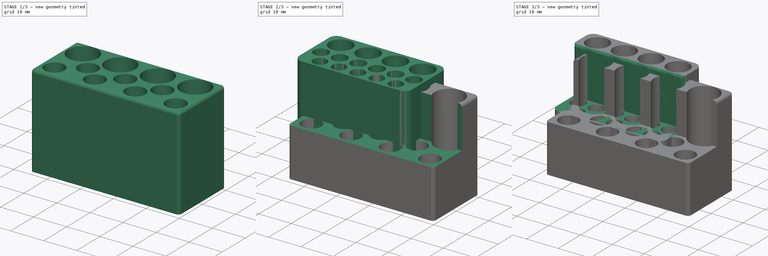
[diagram: build sequence overview — one tinted view per stage of 3, left to right]
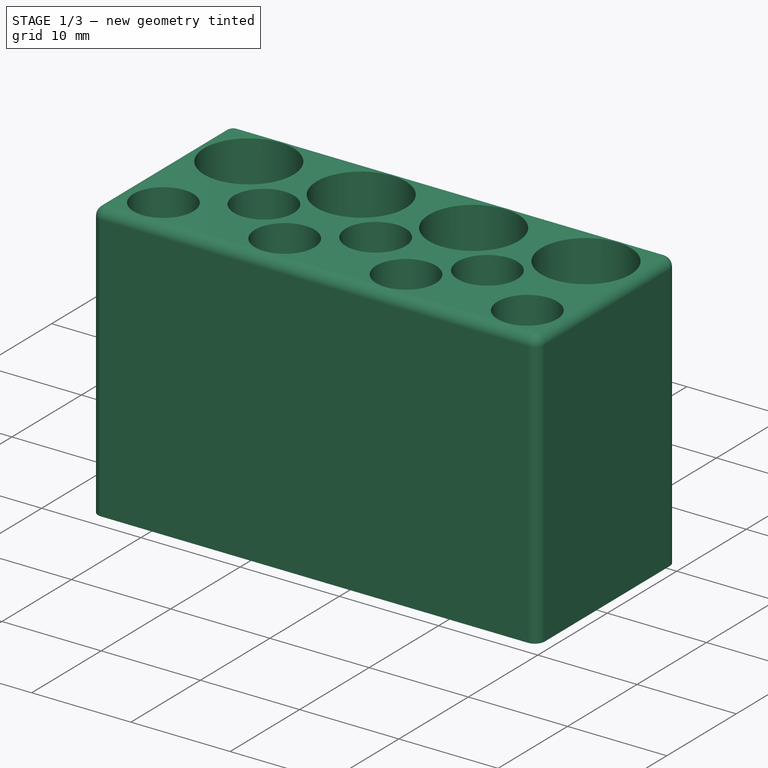
[diagram: stage 1 of 3 — iso view after this stage's code; geometry added in this stage tinted green]
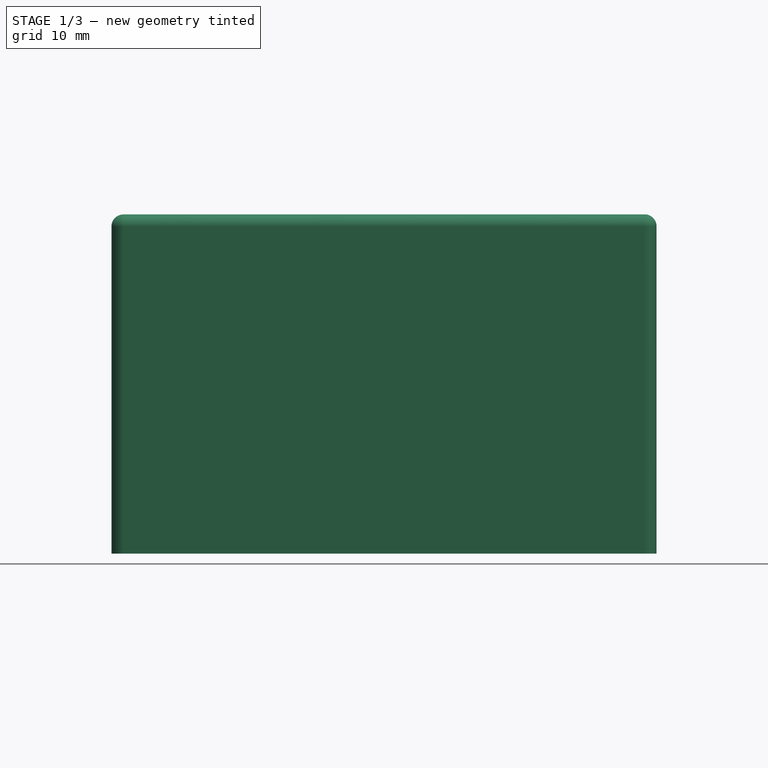
[diagram: stage 1 of 3 — front view after this stage's code; geometry added in this stage tinted green]
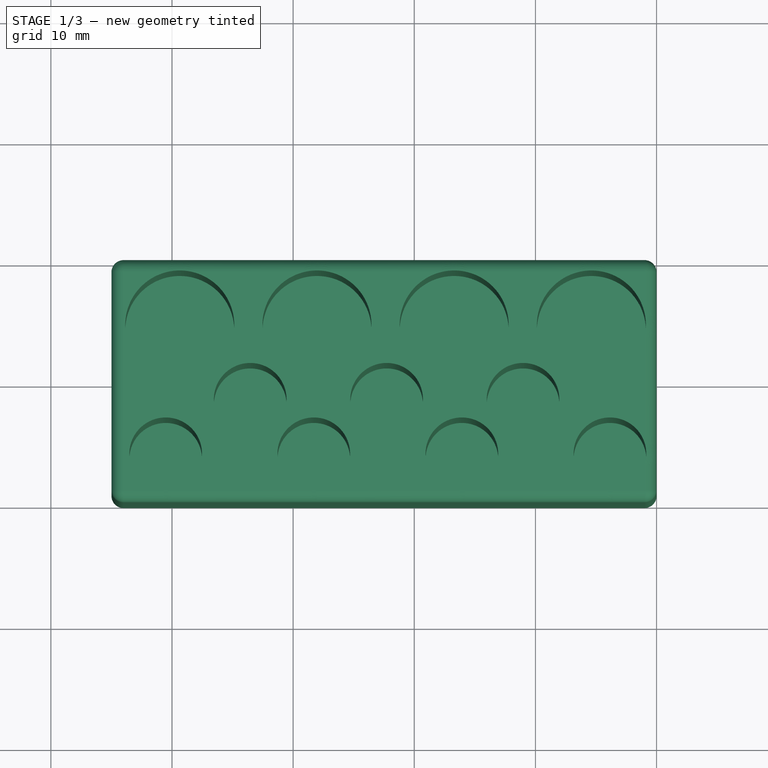
[diagram: stage 1 of 3 — top view after this stage's code; geometry added in this stage tinted green]
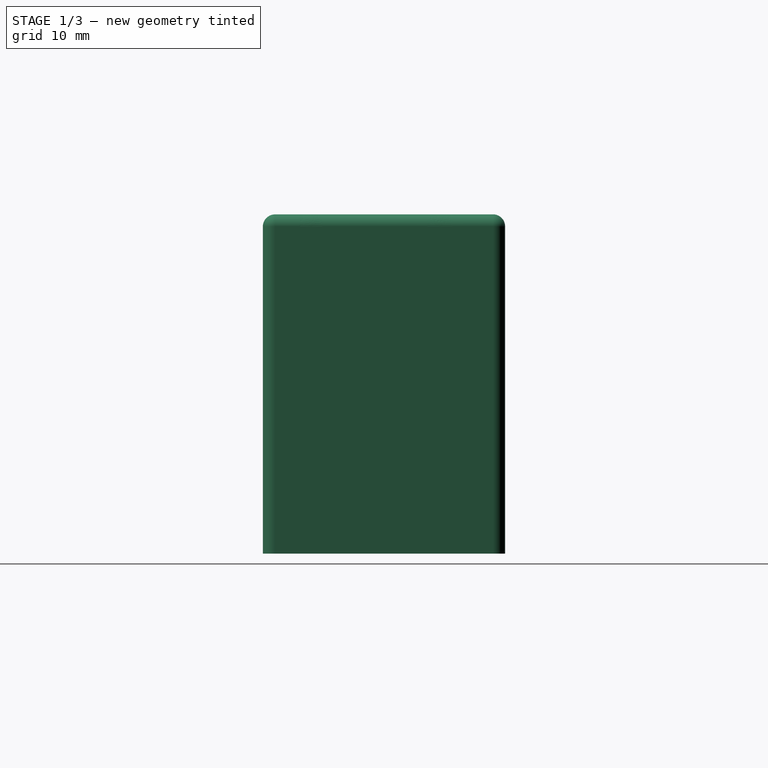
[diagram: stage 1 of 3 — right view after this stage's code; geometry added in this stage tinted green]
FCSTD DOCUMENT  (FreeCAD 1.0R39319 (Git))
Label: screw_gun_01
License: All rights reserved
LicenseURL: https://en.wikipedia.org/wiki/All_rights_reserved
objects: Sketcher::SketchObject×6, PartDesign::Pad×3, PartDesign::Pocket×3, PartDesign::Fillet×2, PartDesign::Body×2, Measure::MeasureLength×1
note: 38 computed .brp shape members not serialized (recipe doc carries the construction recipe); baked Part::Feature solids carry a one-line shape summary decoded from their .brp

FEATURE [PartDesign::Body] Body
  AllowCompound = false
  Group = -> [Sketch,Pad,Sketch001,Pocket,Sketch002,Pad001,Fillet]
  Origin = -> Origin
  Tip = -> Fillet
FEATURE [Sketcher::SketchObject] Sketch003
  ArcFitTolerance = 1e-06
  AttachmentSupport = -> [XY_Plane001]
  FullyConstrained = true
  MakeInternals = false
  MapMode = 5
  sketch-geometry (4):
    g0: LineSegment StartX=0 StartY=0 StartZ=0 EndX=0 EndY=20 EndZ=0
    g1: LineSegment StartX=0 StartY=20 StartZ=0 EndX=-45 EndY=20 EndZ=0
    g2: LineSegment StartX=-45 StartY=20 StartZ=0 EndX=-45 EndY=0 EndZ=0
    g3: LineSegment StartX=-45 StartY=0 StartZ=0 EndX=0 EndY=0 EndZ=0
  constraints (11):
    c: Coincident(g0,g1)
    c: Coincident(g1,g2)
    c: Coincident(g2,g3)
    c: Coincident(g3,g0)
    c: Vertical(g0)
    c: Vertical(g2)
    c: Horizontal(g1)
    c: Horizontal(g3)
    c: Coincident(g0,g-1)
    c: DistanceX(g1,g1) = 45
    c: DistanceY(g2,g2) = 20
FEATURE [PartDesign::Pad] Pad002
  Direction = (0,0,1)
  Length = 28
  Length2 = 10
  Profile = -> Sketch003
  ReferenceAxis = -> Sketch003 [N_Axis]
  Refine = true
  Suppressed = false
  Type = 0
FEATURE [Sketcher::SketchObject] Sketch004
  ArcFitTolerance = 1e-06
  AttachmentSupport = -> [Pad002]
  FullyConstrained = false
  MakeInternals = false
  MapMode = 5
  Placement = pos=(0,0,28) rot=(0,0,1;0rad)
  sketch-geometry (11):
    g0: Circle CenterX=-39.3605 CenterY=14.6273 CenterZ=0 NormalX=0 NormalY=0 NormalZ=1 AngleXU=0 Radius=4.5
    g1: Circle CenterX=-28.0338 CenterY=14.6273 CenterZ=0 NormalX=0 NormalY=0 NormalZ=1 AngleXU=0 Radius=4.5
    g2: Circle CenterX=-16.7072 CenterY=14.6273 CenterZ=0 NormalX=0 NormalY=0 NormalZ=1 AngleXU=0 Radius=4.5
    g3: Circle CenterX=-5.38063 CenterY=14.6273 CenterZ=0 NormalX=0 NormalY=0 NormalZ=1 AngleXU=0 Radius=4.5
    g4: Circle CenterX=-33.542 CenterY=8.49382 CenterZ=0 NormalX=0 NormalY=0 NormalZ=1 AngleXU=0 Radius=3
    g5: Circle CenterX=-22.2819 CenterY=8.49382 CenterZ=0 NormalX=0 NormalY=0 NormalZ=1 AngleXU=0 Radius=3
    g6: Circle CenterX=-11.0218 CenterY=8.49382 CenterZ=0 NormalX=0 NormalY=0 NormalZ=1 AngleXU=0 Radius=3
    g7: Circle CenterX=-40.5214 CenterY=3.99302 CenterZ=0 NormalX=0 NormalY=0 NormalZ=1 AngleXU=0 Radius=3
    g8: Circle CenterX=-28.2968 CenterY=3.99302 CenterZ=0 NormalX=0 NormalY=0 NormalZ=1 AngleXU=0 Radius=3
    g9: Circle CenterX=-16.0722 CenterY=3.99302 CenterZ=0 NormalX=0 NormalY=0 NormalZ=1 AngleXU=0 Radius=3
    g10: Circle CenterX=-3.84757 CenterY=3.99302 CenterZ=0 NormalX=0 NormalY=0 NormalZ=1 AngleXU=0 Radius=3
  constraints (11):
    c: Diameter(g0) = 9
    c: Diameter(g1) = 9
    c: Diameter(g2) = 9
    c: Diameter(g3) = 9
    c: Diameter(g4) = 6
    c: Diameter(g5) = 6
    c: Diameter(g6) = 6
    c: Diameter(g7) = 6
    c: Diameter(g8) = 6
    c: Diameter(g9) = 6
    c: Diameter(g10) = 6
FEATURE [PartDesign::Pocket] Pocket001
  BaseFeature = -> Pad002
  Direction = (0,0,-1)
  Length = 26
  Length2 = 5
  Profile = -> Sketch004
  ReferenceAxis = -> Sketch004 [N_Axis]
  Refine = true
  Suppressed = false
  Type = 0
FEATURE [PartDesign::Fillet] Fillet001
  Base = -> Pocket001 [Edge1,Edge5,Edge8,Edge2,Edge10,Edge7,Edge4,Edge12]
  BaseFeature = -> Pocket001
  Radius = 1
  Refine = true
  SupportTransform = false
  Suppressed = false
  UseAllEdges = false
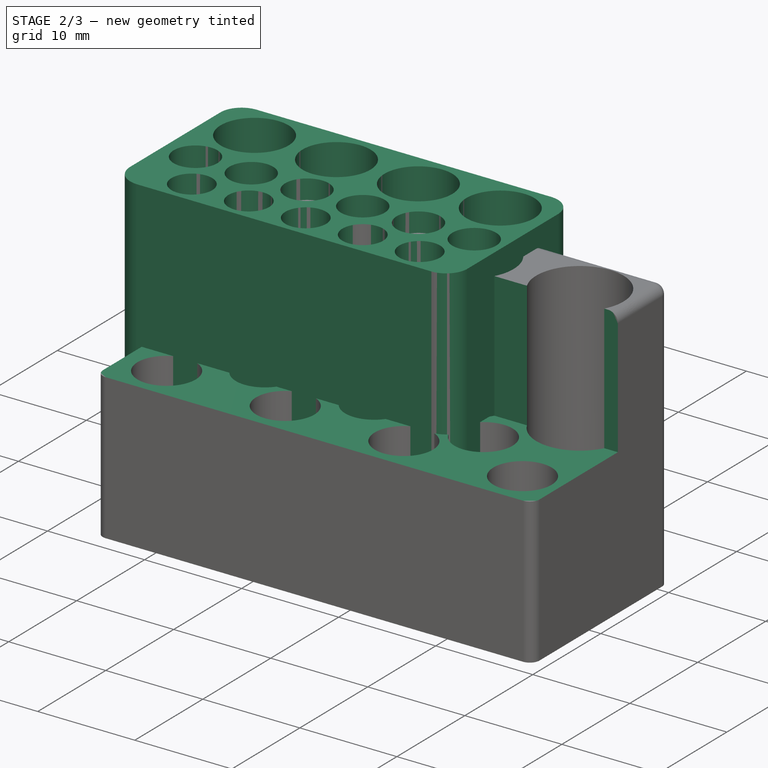
[diagram: stage 2 of 3 — iso view after this stage's code; geometry added in this stage tinted green]
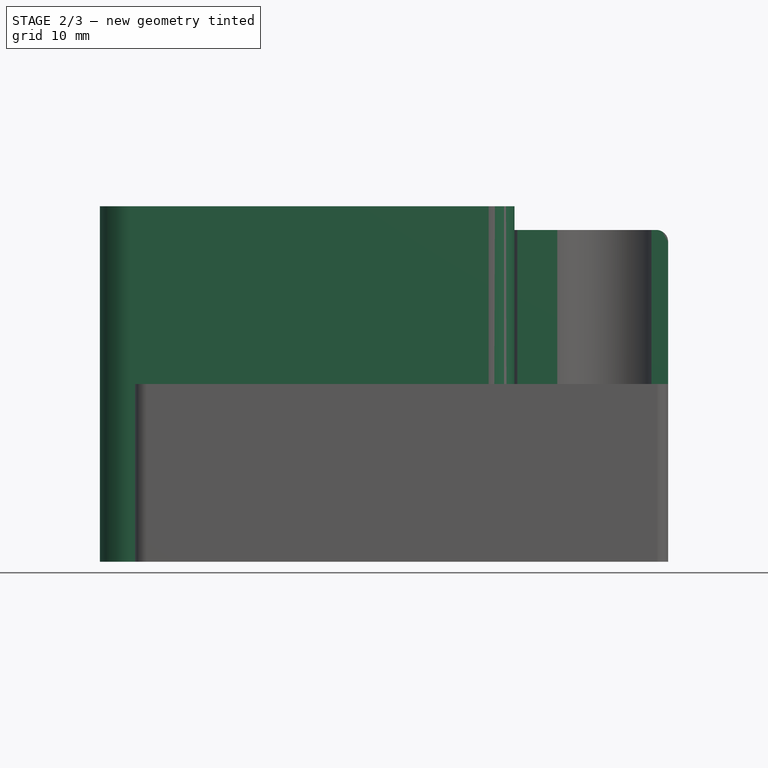
[diagram: stage 2 of 3 — front view after this stage's code; geometry added in this stage tinted green]
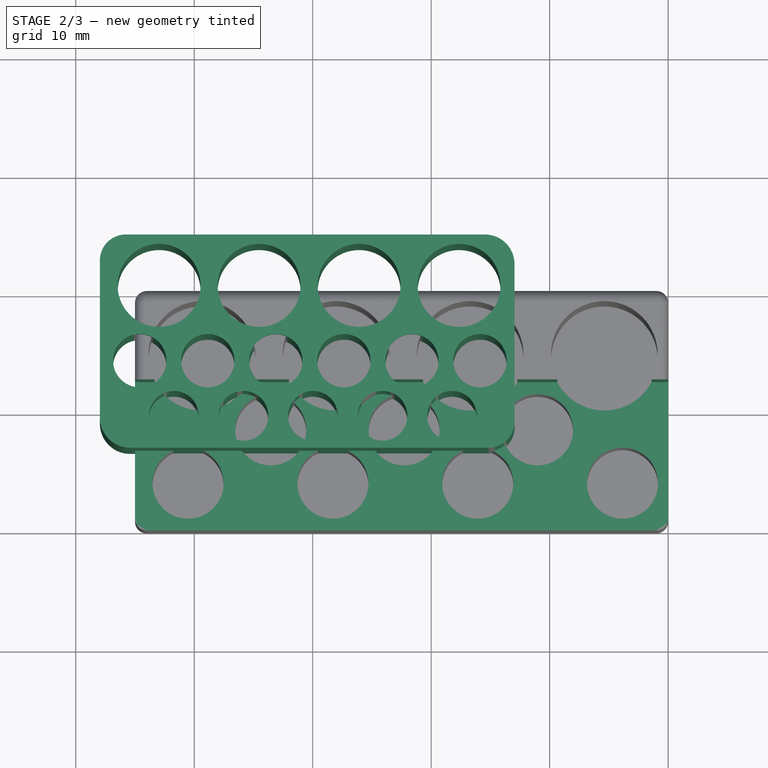
[diagram: stage 2 of 3 — top view after this stage's code; geometry added in this stage tinted green]
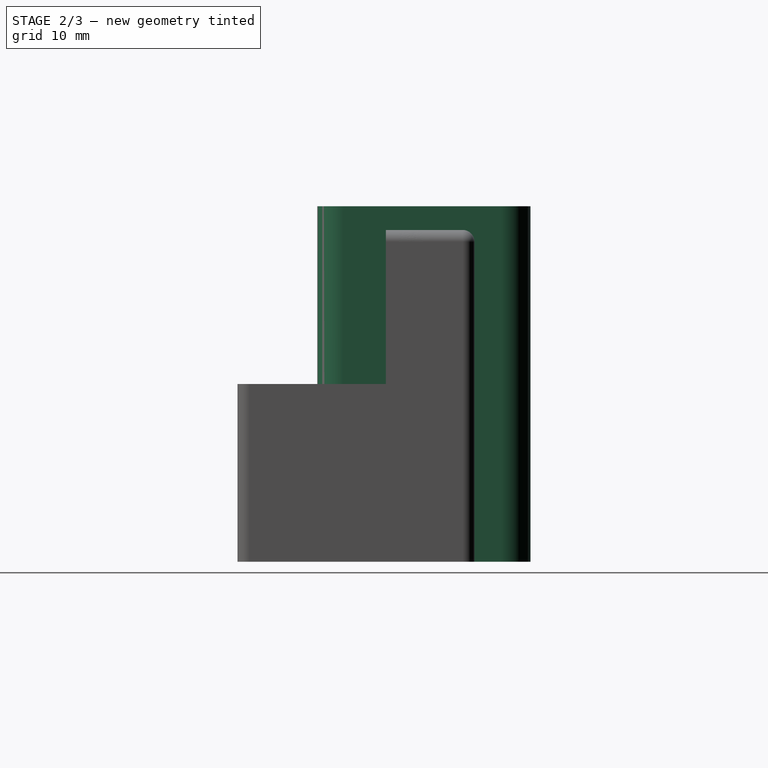
[diagram: stage 2 of 3 — right view after this stage's code; geometry added in this stage tinted green]
FEATURE [Sketcher::SketchObject] Sketch
  ArcFitTolerance = 1e-06
  AttachmentSupport = -> [XY_Plane]
  FullyConstrained = false
  MakeInternals = false
  MapMode = 5
  sketch-geometry (27):
    g0: LineSegment StartX=-47.9646 StartY=22.5368 StartZ=0 EndX=-47.9646 EndY=9.268 EndZ=0
    g1: LineSegment StartX=-45.419 StartY=6.72241 StartZ=0 EndX=-15.1502 EndY=6.72241 EndZ=0
    g2: LineSegment StartX=-12.9646 StartY=8.908 StartZ=0 EndX=-12.9646 EndY=22.2216 EndZ=0
    g3: LineSegment StartX=-15.4654 StartY=24.7224 StartZ=0 EndX=-45.779 EndY=24.7224 EndZ=0
    g4: ArcOfCircle CenterX=-15.4654 CenterY=22.2216 CenterZ=0 NormalX=0 NormalY=0 NormalZ=1 AngleXU=0 Radius=2.50082 StartAngle=2e-16 EndAngle=1.5708
    g5: GeomPoint [constr] X=-12.9646 Y=24.7224 Z=0
    g6: ArcOfCircle CenterX=-15.1502 CenterY=8.908 CenterZ=0 NormalX=0 NormalY=0 NormalZ=1 AngleXU=0 Radius=2.18558 StartAngle=4.71239 EndAngle=6.28319
    g7: GeomPoint [constr] X=-12.9646 Y=6.72241 Z=0
    g8: ArcOfCircle CenterX=-45.419 CenterY=9.268 CenterZ=0 NormalX=0 NormalY=0 NormalZ=1 AngleXU=0 Radius=2.54558 StartAngle=3.14159 EndAngle=4.71239
    g9: GeomPoint [constr] X=-47.9646 Y=6.72241 Z=0
    g10: ArcOfCircle CenterX=-45.779 CenterY=22.5368 CenterZ=0 NormalX=0 NormalY=0 NormalZ=1 AngleXU=0 Radius=2.1856 StartAngle=1.5708 EndAngle=3.14159
    g11: GeomPoint [constr] X=-47.9646 Y=24.7224 Z=0
    g12: Circle CenterX=-42.9646 CenterY=20.4254 CenterZ=0 NormalX=0 NormalY=0 NormalZ=1 AngleXU=0 Radius=3.5
    g13: Circle CenterX=-34.5238 CenterY=20.4254 CenterZ=0 NormalX=0 NormalY=0 NormalZ=1 AngleXU=0 Radius=3.5
    g14: Circle CenterX=-26.083 CenterY=20.4254 CenterZ=0 NormalX=0 NormalY=0 NormalZ=1 AngleXU=0 Radius=3.5
    g15: Circle CenterX=-17.6422 CenterY=20.4254 CenterZ=0 NormalX=0 NormalY=0 NormalZ=1 AngleXU=0 Radius=3.5
    g16: Circle CenterX=-44.6013 CenterY=14.0728 CenterZ=0 NormalX=0 NormalY=0 NormalZ=1 AngleXU=0 Radius=2.25
    g17: Circle CenterX=-38.8568 CenterY=14.0728 CenterZ=0 NormalX=0 NormalY=0 NormalZ=1 AngleXU=0 Radius=2.25
    g18: Circle CenterX=-33.1124 CenterY=14.0728 CenterZ=0 NormalX=0 NormalY=0 NormalZ=1 AngleXU=0 Radius=2.25
    g19: Circle CenterX=-27.368 CenterY=14.0728 CenterZ=0 NormalX=0 NormalY=0 NormalZ=1 AngleXU=0 Radius=2.25
    g20: Circle CenterX=-21.6235 CenterY=14.0728 CenterZ=0 NormalX=0 NormalY=0 NormalZ=1 AngleXU=0 Radius=2.25
    g21: Circle CenterX=-15.8791 CenterY=14.0728 CenterZ=0 NormalX=0 NormalY=0 NormalZ=1 AngleXU=0 Radius=2.25
    g22: Circle CenterX=-41.7175 CenterY=9.41433 CenterZ=0 NormalX=0 NormalY=0 NormalZ=1 AngleXU=0 Radius=2.1
    g23: Circle CenterX=-35.8478 CenterY=9.41433 CenterZ=0 NormalX=0 NormalY=0 NormalZ=1 AngleXU=0 Radius=2.1
    g24: Circle CenterX=-29.9782 CenterY=9.41433 CenterZ=0 NormalX=0 NormalY=0 NormalZ=1 AngleXU=0 Radius=2.1
    g25: Circle CenterX=-24.1085 CenterY=9.41433 CenterZ=0 NormalX=0 NormalY=0 NormalZ=1 AngleXU=0 Radius=2.1
    g26: Circle CenterX=-18.2389 CenterY=9.41433 CenterZ=0 NormalX=0 NormalY=0 NormalZ=1 AngleXU=0 Radius=2.1
  constraints (37):
    c: Vertical(g0)
    c: Vertical(g2)
    c: Horizontal(g1)
    c: Horizontal(g3)
    c: DistanceX(g11,g5) = 35
    c: DistanceY(g7,g5) = 18
    c: PointOnObject(g5,g2)
    c: PointOnObject(g5,g3)
    c: Tangent(g2,g4) = -1.5708
    c: Tangent(g3,g4) = -1.5708
    c: PointOnObject(g7,g1)
    c: PointOnObject(g7,g2)
    c: Tangent(g1,g6) = -1.5708
    c: Tangent(g2,g6) = -1.5708
    c: PointOnObject(g9,g0)
    c: PointOnObject(g9,g1)
    c: Tangent(g0,g8) = -1.5708
    c: Tangent(g1,g8) = -1.5708
    c: PointOnObject(g11,g0)
    c: PointOnObject(g11,g3)
    c: Tangent(g0,g10) = -1.5708
    c: Tangent(g3,g10) = -1.5708
    c: Diameter(g12) = 7
    c: Diameter(g13) = 7
    c: Diameter(g14) = 7
    c: Diameter(g15) = 7
    c: Diameter(g16) = 4.5
    c: Diameter(g17) = 4.5
    c: Diameter(g18) = 4.5
    c: Diameter(g19) = 4.5
    c: Diameter(g20) = 4.5
    c: Diameter(g21) = 4.5
    c: Diameter(g22) = 4.2
    c: Diameter(g23) = 4.2
    c: Diameter(g24) = 4.2
    c: Diameter(g25) = 4.2
    c: Diameter(g26) = 4.2
FEATURE [PartDesign::Pad] Pad
  Direction = (0,0,1)
  Length = 30
  Length2 = 10
  Profile = -> Sketch
  ReferenceAxis = -> Sketch [N_Axis]
  Refine = true
  Suppressed = false
  Type = 0
FEATURE [Sketcher::SketchObject] Sketch005
  ArcFitTolerance = 1e-06
  AttachmentSupport = -> [Fillet001]
  FullyConstrained = false
  MakeInternals = false
  MapMode = 5
  Placement = pos=(0,0,28) rot=(0,0,1;0rad)
  sketch-geometry (4):
    g0: LineSegment StartX=-50.1101 StartY=12.5243 StartZ=0 EndX=-50.1101 EndY=-2.0671 EndZ=0
    g1: LineSegment StartX=-50.1101 StartY=-2.0671 StartZ=0 EndX=6.56973 EndY=-2.0671 EndZ=0
    g2: LineSegment StartX=6.56973 StartY=-2.0671 StartZ=0 EndX=6.56973 EndY=12.5243 EndZ=0
    g3: LineSegment StartX=6.56973 StartY=12.5243 StartZ=0 EndX=-50.1101 EndY=12.5243 EndZ=0
  constraints (8):
    c: Coincident(g0,g1)
    c: Coincident(g1,g2)
    c: Coincident(g2,g3)
    c: Coincident(g3,g0)
    c: Vertical(g0)
    c: Vertical(g2)
    c: Horizontal(g1)
    c: Horizontal(g3)
FEATURE [PartDesign::Pocket] Pocket002
  BaseFeature = -> Fillet001
  Direction = (0,0,-1)
  Length = 13
  Length2 = 5
  Profile = -> Sketch005
  ReferenceAxis = -> Sketch005 [N_Axis]
  Refine = true
  Suppressed = false
  Type = 0
FEATURE [PartDesign::Body] Body001
  AllowCompound = false
  Group = -> [Sketch003,Pad002,Sketch004,Pocket001,Fillet001,Sketch005,Pocket002]
  Origin = -> Origin001
  Tip = -> Pocket002
FEATURE [Measure::MeasureLength] Length  label="Length: 15.00 mm"
  Elements = -> [Body001]
  Length = 15
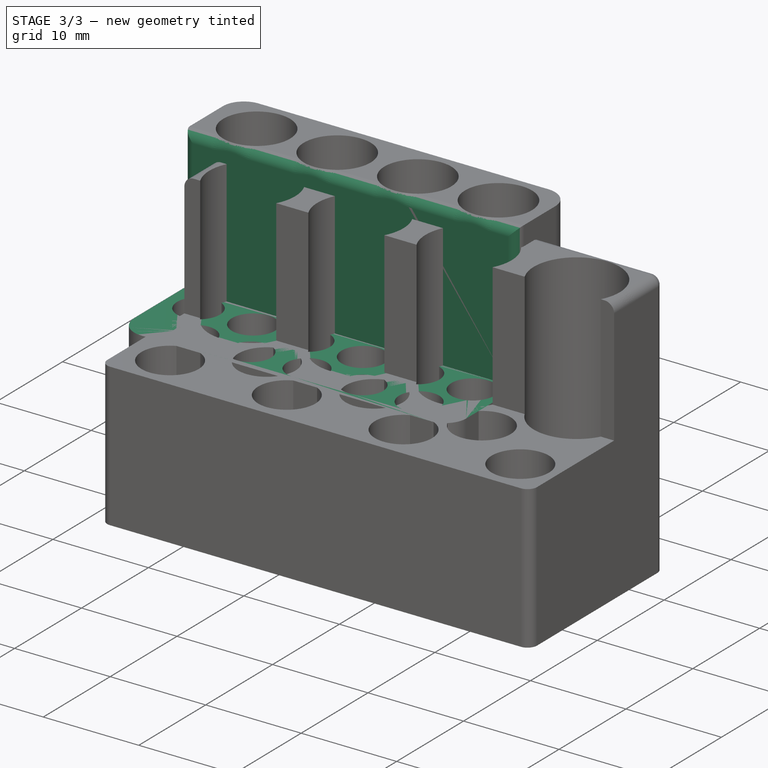
[diagram: stage 3 of 3 — iso view after this stage's code; geometry added in this stage tinted green]
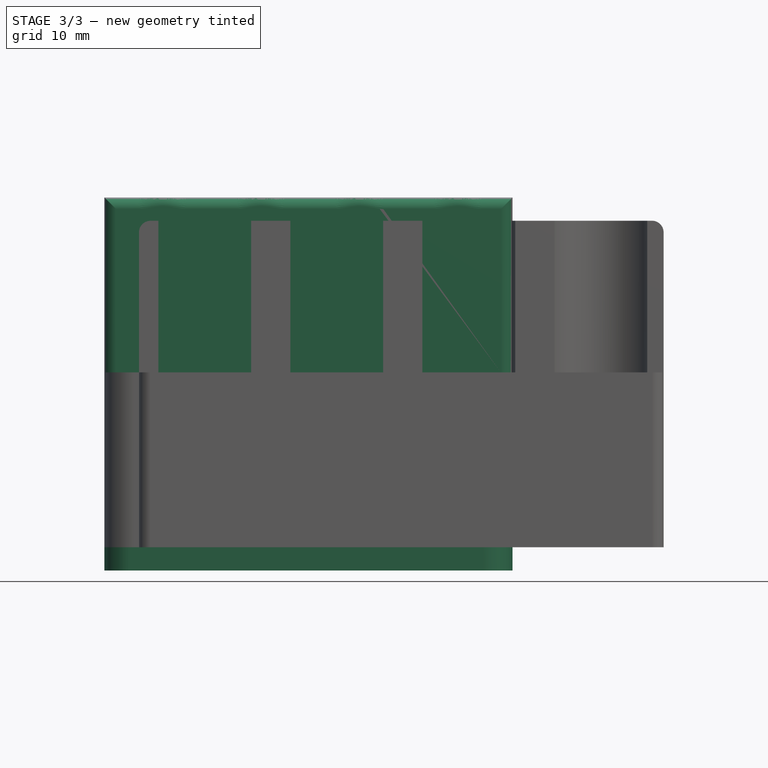
[diagram: stage 3 of 3 — front view after this stage's code; geometry added in this stage tinted green]
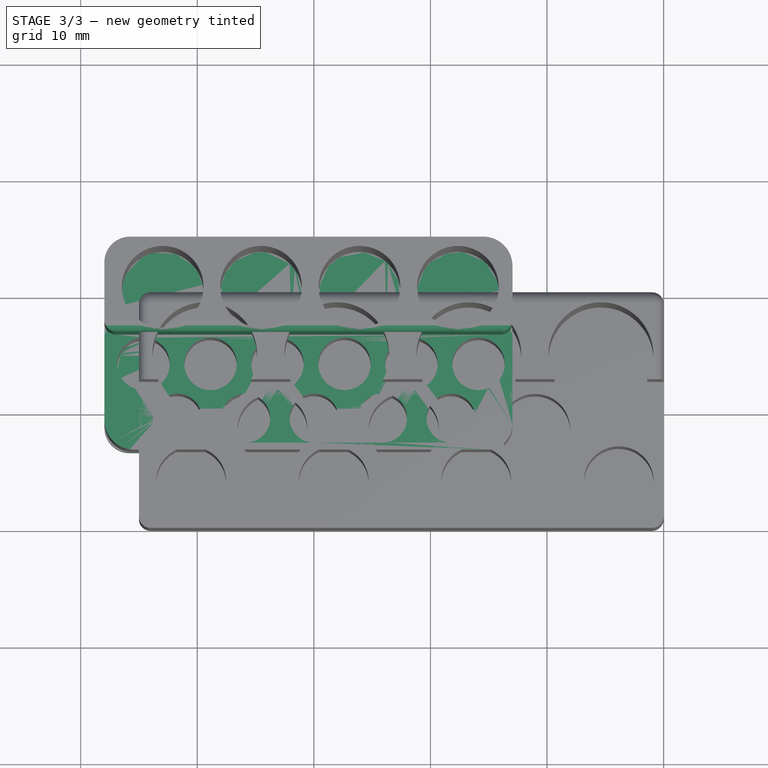
[diagram: stage 3 of 3 — top view after this stage's code; geometry added in this stage tinted green]
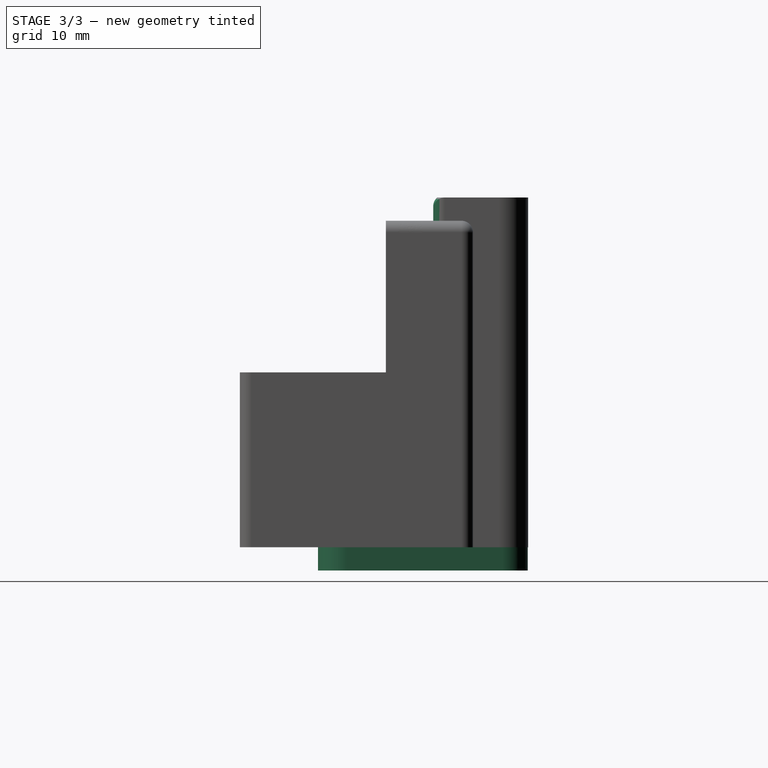
[diagram: stage 3 of 3 — right view after this stage's code; geometry added in this stage tinted green]
FEATURE [Sketcher::SketchObject] Sketch001
  ArcFitTolerance = 1e-06
  AttachmentSupport = -> [Pad]
  FullyConstrained = false
  MakeInternals = false
  MapMode = 5
  Placement = pos=(0,0,30) rot=(0,0,1;0rad)
  sketch-geometry (4):
    g0: LineSegment StartX=-51.208 StartY=16.5841 StartZ=0 EndX=-51.208 EndY=5.04428 EndZ=0
    g1: LineSegment StartX=-51.208 StartY=5.04428 StartZ=0 EndX=-7.99405 EndY=5.04428 EndZ=0
    g2: LineSegment StartX=-7.99405 StartY=5.04428 StartZ=0 EndX=-7.99405 EndY=16.5841 EndZ=0
    g3: LineSegment StartX=-7.99405 StartY=16.5841 StartZ=0 EndX=-51.208 EndY=16.5841 EndZ=0
  constraints (8):
    c: Coincident(g0,g1)
    c: Coincident(g1,g2)
    c: Coincident(g2,g3)
    c: Coincident(g3,g0)
    c: Vertical(g0)
    c: Vertical(g2)
    c: Horizontal(g1)
    c: Horizontal(g3)
FEATURE [PartDesign::Pocket] Pocket
  BaseFeature = -> Pad
  Direction = (0,0,-1)
  Length = 15
  Length2 = 5
  Profile = -> Sketch001
  ReferenceAxis = -> Sketch001 [N_Axis]
  Refine = true
  Suppressed = false
  Type = 0
FEATURE [Sketcher::SketchObject] Sketch002
  ArcFitTolerance = 1e-06
  AttachmentSupport = -> [Pocket]
  FullyConstrained = false
  MakeInternals = false
  MapMode = 5
  Placement = pos=(0,0,0) rot=(1,0,0;3.14159rad)
  sketch-geometry (8):
    g0: LineSegment StartX=-47.9646 StartY=-8.88134 StartZ=0 EndX=-47.9646 EndY=-22.1502 EndZ=0
    g1: LineSegment StartX=-45.419 StartY=-24.6957 StartZ=0 EndX=-15.1502 EndY=-24.6957 EndZ=0
    g2: LineSegment StartX=-12.9646 StartY=-22.5102 StartZ=0 EndX=-12.9646 EndY=-9.19656 EndZ=0
    g3: LineSegment StartX=-15.4654 StartY=-6.69574 StartZ=0 EndX=-45.779 EndY=-6.69574 EndZ=0
    g4: ArcOfCircle CenterX=-15.4654 CenterY=-9.19656 CenterZ=0 NormalX=0 NormalY=0 NormalZ=1 AngleXU=0 Radius=2.50082 StartAngle=0 EndAngle=1.5708
    g5: ArcOfCircle CenterX=-15.1502 CenterY=-22.5102 CenterZ=0 NormalX=0 NormalY=0 NormalZ=1 AngleXU=0 Radius=2.18558 StartAngle=4.71239 EndAngle=6.28319
    g6: ArcOfCircle CenterX=-45.419 CenterY=-22.1502 CenterZ=0 NormalX=0 NormalY=0 NormalZ=1 AngleXU=0 Radius=2.54558 StartAngle=3.14159 EndAngle=4.71239
    g7: ArcOfCircle CenterX=-45.779 CenterY=-8.88134 CenterZ=0 NormalX=0 NormalY=0 NormalZ=1 AngleXU=0 Radius=2.1856 StartAngle=1.5708 EndAngle=3.14159
  constraints (12):
    c: Vertical(g0)
    c: Vertical(g2)
    c: Horizontal(g1)
    c: Horizontal(g3)
    c: Tangent(g2,g4) = -1.5708
    c: Tangent(g3,g4) = -1.5708
    c: Tangent(g1,g5) = -1.5708
    c: Tangent(g2,g5) = -1.5708
    c: Tangent(g0,g6) = -1.5708
    c: Tangent(g1,g6) = -1.5708
    c: Tangent(g0,g7) = -1.5708
    c: Tangent(g3,g7) = -1.5708
FEATURE [PartDesign::Pad] Pad001
  BaseFeature = -> Pocket
  Direction = (0,0,-1)
  Length = 2
  Length2 = 10
  Profile = -> Sketch002
  ReferenceAxis = -> Sketch002 [N_Axis]
  Refine = true
  Suppressed = false
  Type = 0
FEATURE [PartDesign::Fillet] Fillet
  Base = -> Pad001 [Edge36,Edge5,Edge37]
  BaseFeature = -> Pad001
  Radius = 1
  Refine = true
  SupportTransform = false
  Suppressed = false
  UseAllEdges = false
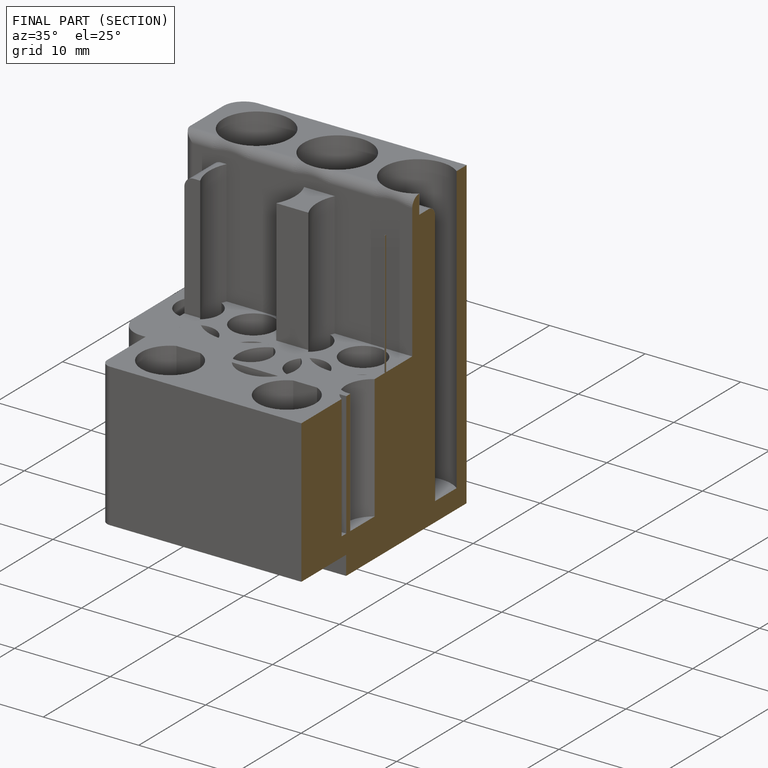
[diagram: finished part — half-section view (interior)]
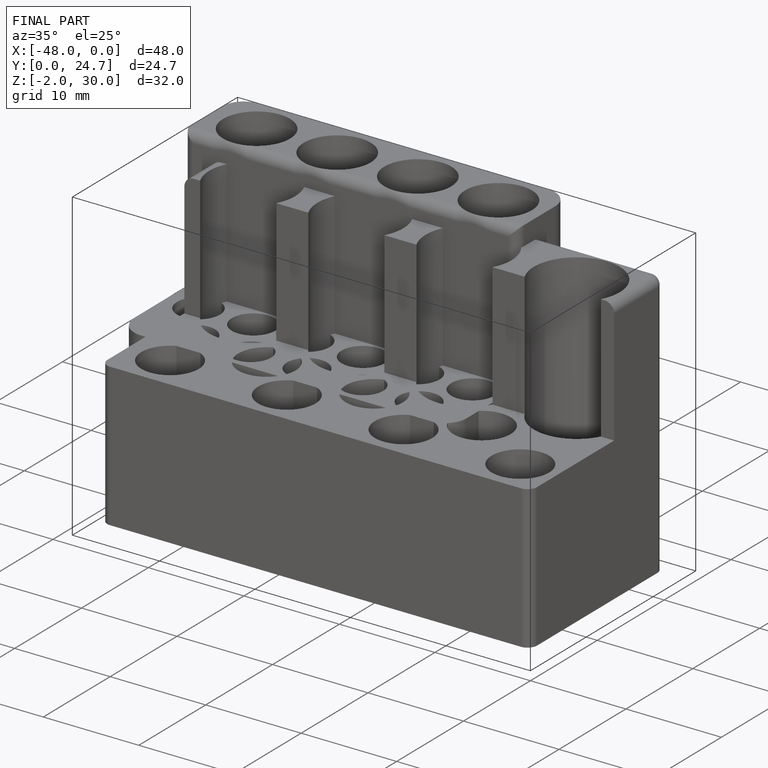
[diagram: finished part — iso view with bounding-box wireframe]
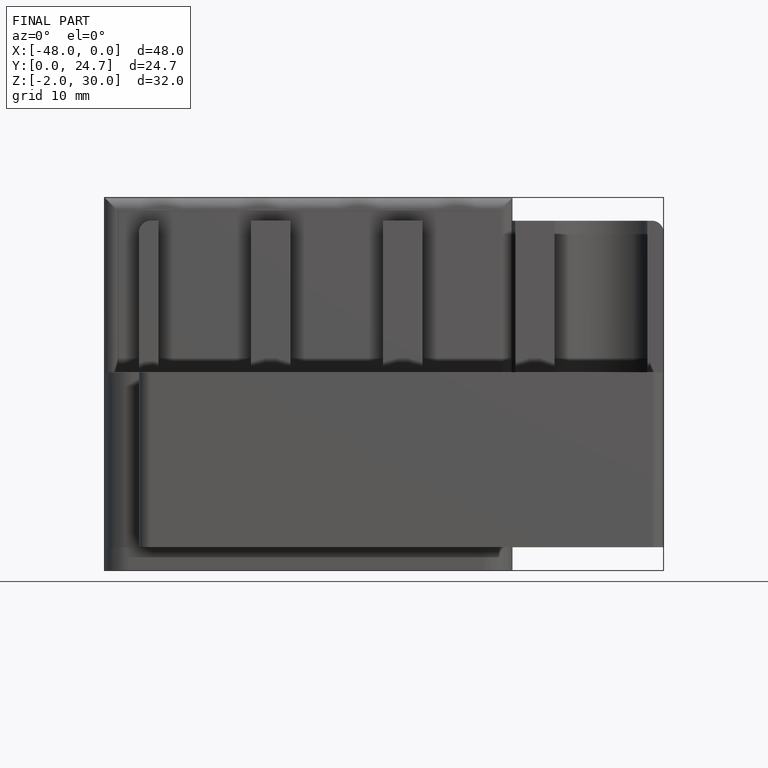
[diagram: finished part — front view with bounding-box wireframe]
